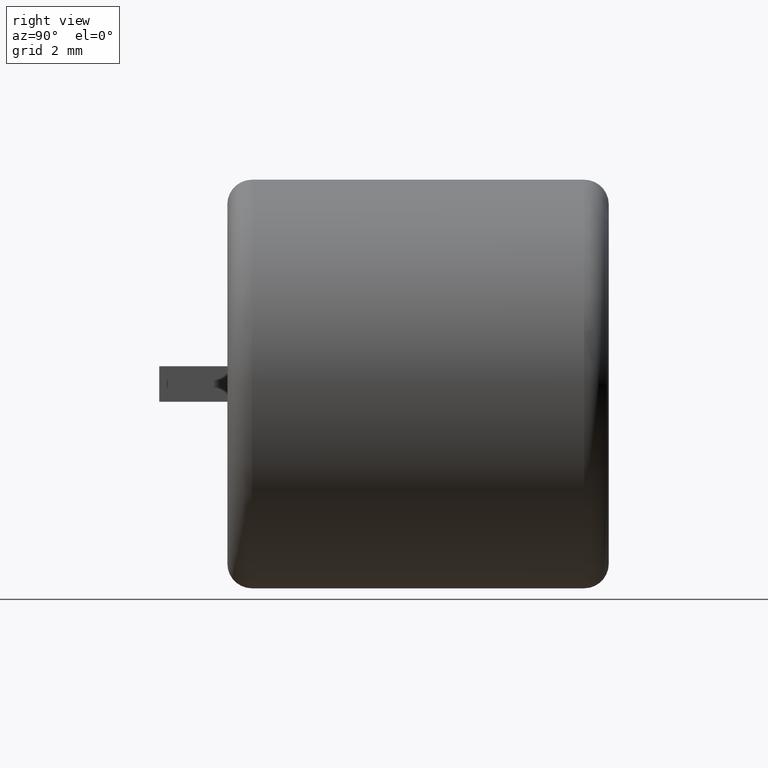
[diagram: clean part render]
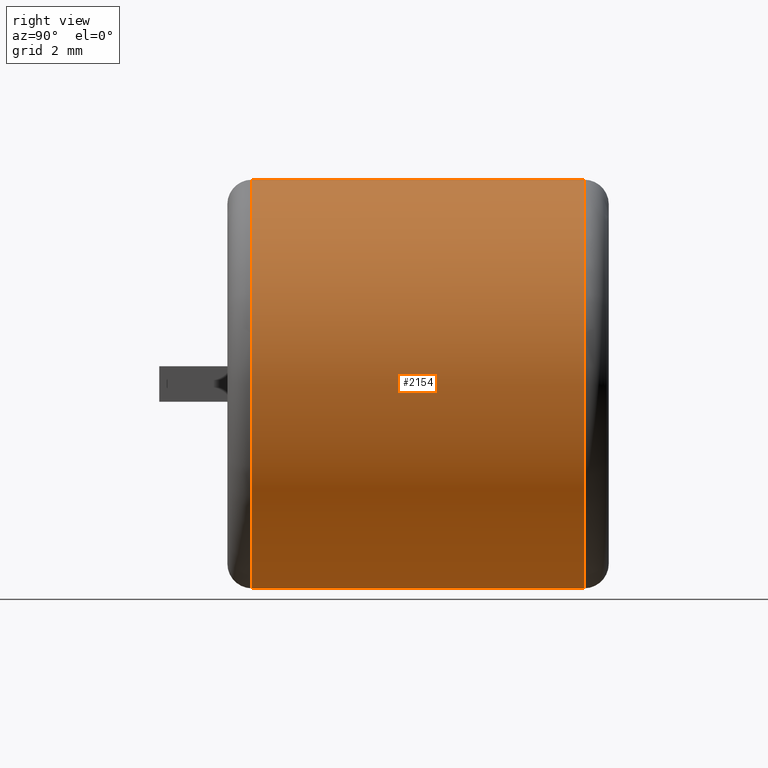
[diagram: same view with one face highlighted and labeled with its STEP entity id]
A machine part, right view. The second image highlights one B-rep face of the part: STEP entity #2154.
In plain terms, the highlighted cylindrical surface (partial cylindrical patch) has radius 7.5 mm, axis along (-0, -1, -0).
Its self-contained STEP definition (entity closure, byte-faithful):
#17 = CARTESIAN_POINT ( 'NONE',  ( 9.184850993605147900E-016, 0.9029999999999992500, 7.500000000000000000 ) ) ;
#22 = DIRECTION ( 'NONE',  ( 0.0000000000000000000, 0.0000000000000000000, 1.000000000000000000 ) ) ;
#45 = VERTEX_POINT ( 'NONE', #1398 ) ;
#76 = CARTESIAN_POINT ( 'NONE',  ( 0.0000000000000000000, 14.00000000000000000, -7.500000000000000000 ) ) ;
#239 = DIRECTION ( 'NONE',  ( 0.0000000000000000000, 1.000000000000000000, 0.0000000000000000000 ) ) ;
#240 = AXIS2_PLACEMENT_3D ( 'NONE', #2231, #2021, #2663 ) ;
#330 = DIRECTION ( 'NONE',  ( 0.0000000000000000000, 0.0000000000000000000, 1.000000000000000000 ) ) ;
#387 = CYLINDRICAL_SURFACE ( 'NONE', #240, 7.500000000000000000 ) ;
#438 = VECTOR ( 'NONE', #717, 1000.000000000000000 ) ;
#474 = ORIENTED_EDGE ( 'NONE', *, *, #683, .F. ) ;
#490 = EDGE_CURVE ( 'NONE', #2073, #1152, #932, .T. ) ;
#546 = EDGE_CURVE ( 'NONE', #1080, #45, #1448, .T. ) ;
#556 = DIRECTION ( 'NONE',  ( -0.0000000000000000000, -1.000000000000000000, -0.0000000000000000000 ) ) ;
#683 = EDGE_CURVE ( 'NONE', #2073, #45, #1348, .T. ) ;
#717 = DIRECTION ( 'NONE',  ( -0.0000000000000000000, -1.000000000000000000, -0.0000000000000000000 ) ) ;
#932 = CIRCLE ( 'NONE', #2350, 7.500000000000000000 ) ;
#1000 = DIRECTION ( 'NONE',  ( -0.0000000000000000000, -1.000000000000000000, -0.0000000000000000000 ) ) ;
#1053 = ORIENTED_EDGE ( 'NONE', *, *, #1530, .T. ) ;
#1080 = VERTEX_POINT ( 'NONE', #17 ) ;
#1152 = VERTEX_POINT ( 'NONE', #2138 ) ;
#1348 = LINE ( 'NONE', #76, #438 ) ;
#1398 = CARTESIAN_POINT ( 'NONE',  ( 0.0000000000000000000, 0.9029999999999992500, -7.500000000000000000 ) ) ;
#1448 = CIRCLE ( 'NONE', #1963, 7.500000000000000000 ) ;
#1530 = EDGE_CURVE ( 'NONE', #1152, #1080, #1736, .T. ) ;
#1548 = ORIENTED_EDGE ( 'NONE', *, *, #546, .T. ) ;
#1565 = FACE_OUTER_BOUND ( 'NONE', #2212, .T. ) ;
#1585 = ORIENTED_EDGE ( 'NONE', *, *, #490, .T. ) ;
#1633 = VECTOR ( 'NONE', #1000, 1000.000000000000000 ) ;
#1736 = LINE ( 'NONE', #2277, #1633 ) ;
#1895 = CARTESIAN_POINT ( 'NONE',  ( 0.0000000000000000000, 13.09700000000000100, -7.500000000000000000 ) ) ;
#1911 = CARTESIAN_POINT ( 'NONE',  ( 0.0000000000000000000, 0.9029999999999992500, 0.0000000000000000000 ) ) ;
#1963 = AXIS2_PLACEMENT_3D ( 'NONE', #1911, #239, #22 ) ;
#2021 = DIRECTION ( 'NONE',  ( -0.0000000000000000000, -1.000000000000000000, -0.0000000000000000000 ) ) ;
#2073 = VERTEX_POINT ( 'NONE', #1895 ) ;
#2138 = CARTESIAN_POINT ( 'NONE',  ( 9.184850993605147900E-016, 13.09700000000000100, 7.500000000000000000 ) ) ;
#2154 = ADVANCED_FACE ( 'NONE', ( #1565 ), #387, .T. ) ;
#2212 = EDGE_LOOP ( 'NONE', ( #1585, #1053, #1548, #474 ) ) ;
#2231 = CARTESIAN_POINT ( 'NONE',  ( 0.0000000000000000000, 14.00000000000000000, 0.0000000000000000000 ) ) ;
#2238 = CARTESIAN_POINT ( 'NONE',  ( 0.0000000000000000000, 13.09700000000000100, 0.0000000000000000000 ) ) ;
#2277 = CARTESIAN_POINT ( 'NONE',  ( 9.184850993605147900E-016, 14.00000000000000000, 7.500000000000000000 ) ) ;
#2350 = AXIS2_PLACEMENT_3D ( 'NONE', #2238, #556, #330 ) ;
#2663 = DIRECTION ( 'NONE',  ( 0.0000000000000000000, 0.0000000000000000000, -1.000000000000000000 ) ) ;